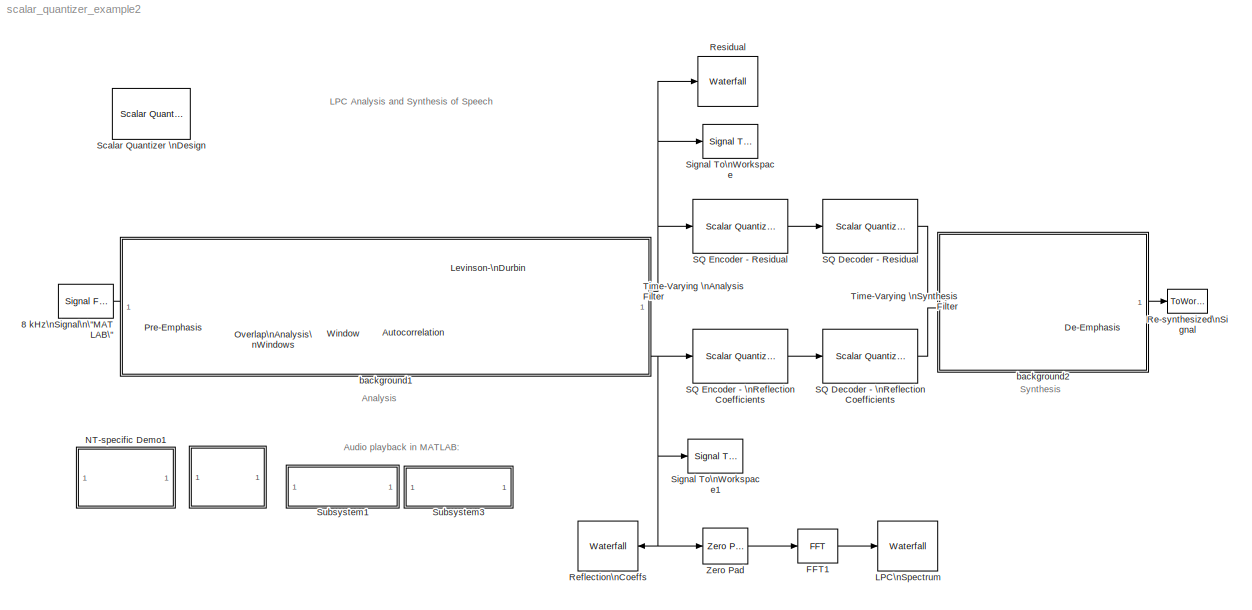
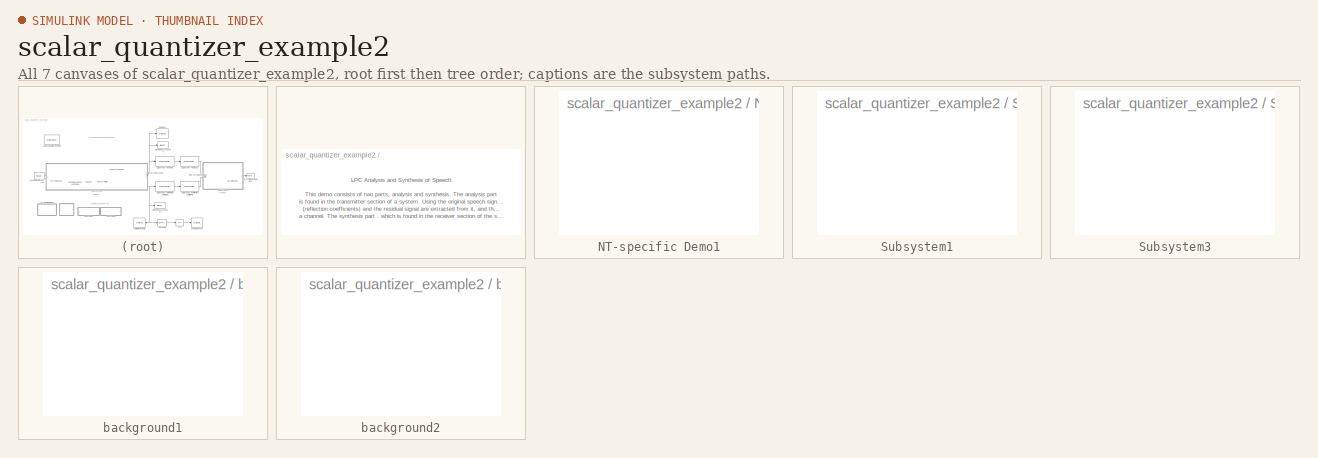
[diagram: thumbnail index - all 7 canvases of the model, root first then tree order]
MODEL scalar_quantizer_example2
KIND model
CONFIG AbsTol = auto
CONFIG FixedStep = auto
CONFIG MaxStep = auto
CONFIG MinStep = auto
CONFIG PreLoadFcn = load mtlb;
CONFIG RelTol = 1e-3
CONFIG Solver = FixedStepDiscrete
CONFIG SolverMode = SingleTasking
CONFIG StartTime = 0.0
CONFIG StopTime = 0.49
BLOCK [SubSystem]  
  MaskDisplay = disp('Info')
  MaskIconFrame = on
  MaskIconOpaque = on
  MaskIconRotate = none
  MaskIconUnits = autoscale
  MaskType = Frame-Based Simulation Info
  Ports = []
  TreatAsAtomicUnit = off
BLOCK [Reference] 8 kHz\nSignal\n\"MATLAB\"  REF=dspsrcs4/Signal From\nWorkspace
  OutputAfterFinalValue = Setting to zero
  Ports = [0, 1]
  SourceBlock = dspsrcs4/Signal From\nWorkspace
  SourceType = Signal From Workspace
  Ts = 1/8000
  X = mtlb*0.32
  nsamps = 80
BLOCK [Reference] Autocorrelation  REF=dspstat3/Autocorrelation
  AllPositiveLags = off
  Ports = [1, 1]
  SourceBlock = dspstat3/Autocorrelation
  SourceType = Autocorrelation
  accumFracLength = 30
  accumMode = Same as output
  accumWordLength = 40
  additionalParams = off
  allowOverrides = on
  bias = Biased
  domain = Time
  maxlag = 12
  outputFracLength = 15
  outputMode = Same as input
  outputWordLength = 16
  overflowMode = off
  prodOutputFracLength = 30
  prodOutputMode = Same as accumulator
  prodOutputWordLength = 32
  roundingMode = Floor
BLOCK [Reference] De-Emphasis  REF=dsparch4/Digital Filter
  AllPoleFiltStruct = Direct form
  BiQuadCoeffs = [1 0.3 0.4 1 0.1 0.2]
  CoeffSource = Specify via dialog
  DenCoeffs = [1 -.95]
  FIRFiltStruct = Direct form
  FiltPerSampPopup = One filter per frame
  IC = 0
  ICden = 0
  ICnum = 0
  IIRFiltStruct = Direct form II transposed
  LatticeCoeffs = [0.2 0.4]
  NumCoeffs = [1 -.95]
  Ports = [1, 1]
  SourceBlock = dsparch4/Digital Filter
  SourceType = Digital Filter
  TypePopup = IIR (all poles)
  accumFracLength = 30
  accumMode = Same as output
  accumWordLength = 40
  additionalParams = off
  allowOverrides = on
  denIgnore = on
  firstCoeffFracLength = 15
  firstCoeffMode = Same as input
  firstCoeffWordLength = 16
  memoryFracLength = 14
  memoryMode = Same as input
  memoryWordLength = 16
  outputFracLength = 15
  outputMode = Same as input
  outputWordLength = 16
  overflowMode = off
  prodOutputFracLength = 30
  prodOutputMode = Same as output
  prodOutputWordLength = 32
  roundingMode = Floor
  secondCoeffFracLength = 15
  secondCoeffMode = Same as numerator
  secondCoeffWordLength = 16
  showAcc = off
  showCoeff = off
  showMem = off
  showMpy = off
  showOut = off
  thirdCoeffFracLength = 15
  thirdCoeffMode = Same as input
  thirdCoeffWordLength = 16
BLOCK [Reference] FFT1  REF=dspxfrm3/FFT
  BitRevOrder = off
  CompMethod = Table lookup
  Ports = [1, 1]
  SkipNorm = off
  SourceBlock = dspxfrm3/FFT
  SourceType = FFT
  TableOpt = Speed
  accumFracLength = 24
  accumMode = Same as output
  accumWordLength = 32
  additionalParams = off
  allowOverrides = on
  firstCoeffFracLength = 15
  firstCoeffMode = Same as input
  firstCoeffWordLength = 16
  outputFracLength = 12
  outputMode = Same as input
  outputWordLength = 16
  overflowMode = off
  prodOutputFracLength = 24
  prodOutputMode = Same as accumulator
  prodOutputWordLength = 32
  roundingMode = Floor
BLOCK [Reference] LPC\nSpectrum  REF=dspsnks4/Waterfall
  AutoExport = off
  AxisColor = [1 1 1]*.9
  AxisGrid = off
  AxisProperties = off
  CMapStr = autumn
  CameraView = [89945.9047576273 49093.2447020758 -7462.52930692949 -16.6995606364064 71 5.5 2.5389885178677 -5.30668596526891 0.808418434368868 0.0592442608385446 5.583225828012 14.2 1]
  DisplayProperties = off
  ExportMode = All visible
  FigPos = [452 44 407 353]
  HistoryFull = Overwrite
  HistoryLength = 100
  InportDimsHint = [129 1]
  MLExportName = ExportData
  MouseMode = Orbit
  NumTraces = 10
  OpenScopeAtSimStart = off
  Ports = [1]
  Snapshot = off
  SourceBlock = dspsnks4/Waterfall
  SourceType = Waterfall
  Suspend = off
  SyncSnapshots = off
  TNewest = 0.35
  TOldest = 0.1
  TraceProperties = off
  TrigRearmFcn = trigrearm
  TrigRearmMode = User-defined
  TrigRearmN = 100
  TrigRearmT = 0
  TrigStartFcn = trigPower
  TrigStartMode = Immediately
  TrigStartN = 1000
  TrigStartT = 10
  TrigStopFcn = trigend
  TrigStopMode = Never
  TrigStopN = 10
  TrigStopT = 0.1
  TriggerProperties = off
  UpdateInterval = 1
  XLabel = Frequency
  XformExpr = 20*log10(abs(u(129:2:end)))
  XformFcn = fliplr
  XformMode = FFT->Mag dB Fs/2
  XformProperties = off
  YLabel = Mag^2
  YMax = 11.2165685036536
  YMin = -44.6156897764664
  ZLabel = History
BLOCK [Reference] Levinson-\nDurbin  REF=dspsolvers/Levinson-Durbin
  Ports = [1, 1]
  SourceBlock = dspsolvers/Levinson-Durbin
  SourceType = Levinson-Durbin
  coeffOutFcn = K
  outP = off
  zeroInpHandling = on
BLOCK [SubSystem] NT-specific Demo1
  MaskDisplay = disp('PC/Windows\\nLPC Demo')
  MaskIconFrame = on
  MaskIconOpaque = on
  MaskIconRotate = none
  MaskIconUnits = autoscale
  MaskType = NT-only Demo
  OpenFcn = dsplpc_win32
  Ports = []
  TreatAsAtomicUnit = off
BLOCK [Reference] Overlap\nAnalysis\nWindows  REF=dspbuff3/Buffer
  N = 160
  Ports = [1, 1]
  SourceBlock = dspbuff3/Buffer
  SourceType = Buffer
  V = 80
  ic = 0
BLOCK [Reference] Pre-Emphasis  REF=dsparch4/Digital Filter
  AllPoleFiltStruct = Direct form
  BiQuadCoeffs = [1 0.3 0.4 1 0.1 0.2]
  CoeffSource = Specify via dialog
  DenCoeffs = [1 0.1]
  FIRFiltStruct = Direct form
  FiltPerSampPopup = One filter per frame
  IC = 0
  ICden = 0
  ICnum = 0
  IIRFiltStruct = Direct form II transposed
  LatticeCoeffs = [0.2 0.4]
  NumCoeffs = [1 -.95]
  Ports = [1, 1]
  SourceBlock = dsparch4/Digital Filter
  SourceType = Digital Filter
  TypePopup = FIR (all zeros)
  accumFracLength = 30
  accumMode = Same as output
  accumWordLength = 40
  additionalParams = off
  allowOverrides = on
  denIgnore = on
  firstCoeffFracLength = 15
  firstCoeffMode = Same as input
  firstCoeffWordLength = 16
  memoryFracLength = 14
  memoryMode = Same as input
  memoryWordLength = 16
  outputFracLength = 15
  outputMode = Same as input
  outputWordLength = 16
  overflowMode = off
  prodOutputFracLength = 30
  prodOutputMode = Same as output
  prodOutputWordLength = 32
  roundingMode = Floor
  secondCoeffFracLength = 15
  secondCoeffMode = Same as numerator
  secondCoeffWordLength = 16
  showAcc = off
  showCoeff = off
  showMem = off
  showMpy = off
  showOut = off
  thirdCoeffFracLength = 15
  thirdCoeffMode = Same as input
  thirdCoeffWordLength = 16
BLOCK [ToWorkspace] Re-synthesized\nSignal
  MaxDataPoints = inf
  SampleTime = -1
  SaveFormat = Array
  VariableName = y_lpc
BLOCK [Reference] Reflection\nCoeffs  REF=dspsnks4/Waterfall
  AutoExport = off
  AxisColor = [1 1 1]*.9
  AxisGrid = on
  AxisProperties = off
  CMapStr = autumn
  CameraView = [73343.0440471642 150383.489958622 -231607.055769344 -0.0735265549347769 7.5 5.5 0.547487828138618 -2.62241953831449 4.03911084299836 0.00240035045613671 1 7.88928028685195 5.25952019123463]
  DisplayProperties = off
  ExportMode = All visible
  FigPos = [35 41 410 358]
  HistoryFull = Overwrite
  HistoryLength = 50
  InportDimsHint = [12 1]
  MLExportName = ExportData2
  MouseMode = Orbit
  NumTraces = 10
  OpenScopeAtSimStart = off
  Ports = [1]
  Snapshot = off
  SourceBlock = dspsnks4/Waterfall
  SourceType = Waterfall
  Suspend = off
  SyncSnapshots = off
  TNewest = 0.7
  TOldest = 0.1
  TraceProperties = off
  TrigRearmFcn = trigrearm
  TrigRearmMode = User-defined
  TrigRearmN = 100
  TrigRearmT = 0
  TrigStartFcn = trigPower
  TrigStartMode = Immediately
  TrigStartN = 1000
  TrigStartT = 10
  TrigStopFcn = trigend
  TrigStopMode = Never
  TrigStopN = 10
  TrigStopT = 0.1
  TriggerProperties = off
  UpdateInterval = 1
  XLabel = Coefficient
  XformExpr = 20*log10(abs(u(129:2:end)))
  XformFcn = fliplr
  XformMode = None
  XformProperties = off
  YLabel = RC Amplitude
  YMax = 0.877130504683106
  YMin = -1.02418361455266
  ZLabel = History
BLOCK [Reference] Residual  REF=dspsnks4/Waterfall
  AutoExport = off
  AxisColor = [1 1 1]*.9
  AxisGrid = on
  AxisProperties = off
  CMapStr = autumn
  CameraView = [62164.2347969079 1792549.89917746 -405278.370332737 -0.097024155318337 44.5 5.5 0.575539043328793 -33.5051317778483 7.57548038023531 0.00104183380472551 1 92.0645761641202 10.3443344004629]
  DisplayProperties = off
  ExportMode = All visible
  FigPos = [524 276 410 358]
  HistoryFull = Overwrite
  HistoryLength = 50
  InportDimsHint = [80 1]
  MLExportName = ExportData2
  MouseMode = Orbit
  NumTraces = 10
  OpenScopeAtSimStart = off
  Ports = [1]
  Snapshot = off
  SourceBlock = dspsnks4/Waterfall
  SourceType = Waterfall
  Suspend = off
  SyncSnapshots = off
  TNewest = 0.7
  TOldest = 0.1
  TraceProperties = off
  TrigRearmFcn = trigrearm
  TrigRearmMode = User-defined
  TrigRearmN = 100
  TrigRearmT = 0
  TrigStartFcn = trigPower
  TrigStartMode = Immediately
  TrigStartN = 1000
  TrigStartT = 10
  TrigStopFcn = trigend
  TrigStopMode = Never
  TrigStopN = 10
  TrigStopT = 0.1
  TriggerProperties = off
  UpdateInterval = 1
  XLabel = Coefficient
  XformExpr = 20*log10(abs(u(129:2:end)))
  XformFcn = fliplr
  XformMode = None
  XformProperties = off
  YLabel = Amplitude
  YMax = 0.386332221847528
  YMin = -0.580380532484202
  ZLabel = History
BLOCK [Reference] SQ Decoder - Residual  REF=dspquant2/Scalar Quantizer\nDecoder
  CBsource = Specify via dialog
  Ports = [1, 1]
  SourceBlock = dspquant2/Scalar Quantizer\nDecoder
  SourceType = Scalar Quantizer Decoder
  Tag = SQDESIGN_GUI_REALIZE_MODEL
  allowOverrides = off
  codebook = [-0.52762    -0.50434    -0.48686    -0.48023    -0.47847      -0.471    -0.46439    -0.45511     -0.4483    -0.44149    -0.41351    -0.40777    -0.38649    -0.38257    -0.34459    -0.33656      -0.332    -0.31506     -0.3058    -0.29467    -0.28964    -0.27695    -0.26405    -0.25569    -0.24792    -0.24257    -0.23586    -0.22862     -0.2106    -0.20577    -0.20412    -0.18901    -0.18326    -0....<+1134ch>
  cwdtype = Double
  invalidin = Clip
  outputFracLength = 15
  outputMode = User-defined
  outputWordLength = 16
BLOCK [Reference] SQ Decoder - \nReflection Coefficients  REF=dspquant2/Scalar Quantizer\nDecoder
  CBsource = Specify via dialog
  Ports = [1, 1]
  SourceBlock = dspquant2/Scalar Quantizer\nDecoder
  SourceType = Scalar Quantizer Decoder
  Tag = SQDESIGN_GUI_REALIZE_MODEL
  allowOverrides = off
  codebook = [-0.93108    -0.91578    -0.90225    -0.85885    -0.84421     -0.8286    -0.81712    -0.78966    -0.76767    -0.74324    -0.72758    -0.71545    -0.62453    -0.59909    -0.58999    -0.56847    -0.56322    -0.54348    -0.51668    -0.50859    -0.49049     -0.4556     -0.4112    -0.40503    -0.39626    -0.37809    -0.36536    -0.36021    -0.35285    -0.34363     -0.3372     -0.3301    -0.32038    -0....<+1134ch>
  cwdtype = Double
  invalidin = Clip
  outputFracLength = 15
  outputMode = User-defined
  outputWordLength = 16
BLOCK [Reference] SQ Encoder - Residual  REF=dspquant2/Scalar Quantizer\nEncoder
  BBoundary = [-inf -0.51598     -0.4956    -0.48355    -0.47935    -0.47473    -0.46769    -0.45975     -0.4517     -0.4449     -0.4275    -0.41064    -0.39713    -0.38453    -0.36358    -0.34057    -0.33428    -0.32353    -0.31043    -0.30024    -0.29216    -0.28329     -0.2705    -0.25987     -0.2518    -0.24524    -0.23922    -0.23224    -0.21961    -0.20819    -0.20495    -0.19656    -0.18613    -0.18151  ...<+1133ch>
  Ports = [1, 1]
  SearchMethod = Binary
  SourceBlock = dspquant2/Scalar Quantizer\nEncoder
  SourceType = Scalar Quantizer Encoder
  Tag = SQDESIGN_GUI_REALIZE_MODEL
  UBoundary = [ -0.51598     -0.4956    -0.48355    -0.47935    -0.47473    -0.46769    -0.45975     -0.4517     -0.4449     -0.4275    -0.41064    -0.39713    -0.38453    -0.36358    -0.34057    -0.33428    -0.32353    -0.31043    -0.30024    -0.29216    -0.28329     -0.2705    -0.25987     -0.2518    -0.24524    -0.23922    -0.23224    -0.21961    -0.20819    -0.20495    -0.19656    -0.18613    -0.18151    -0...<+1125ch>
  additionalParams = off
  allowOverrides = on
  codebook = [-0.52762    -0.50434    -0.48686    -0.48023    -0.47847      -0.471    -0.46439    -0.45511     -0.4483    -0.44149    -0.41351    -0.40777    -0.38649    -0.38257    -0.34459    -0.33656      -0.332    -0.31506     -0.3058    -0.29467    -0.28964    -0.27695    -0.26405    -0.25569    -0.24792    -0.24257    -0.23586    -0.22862     -0.2106    -0.20577    -0.20412    -0.18901    -0.18326    -0....<+1134ch>
  idtype = int32
  invalidin = Clip
  outQError = off
  outQU = off
  outStatus = off
  overflowMode = on
  paramSrc = Specify via dialog
  partType = Bounded
  roundingMode = Nearest
  tieBreakRule = Choose the lower index
BLOCK [Reference] SQ Encoder - \nReflection Coefficients  REF=dspquant2/Scalar Quantizer\nEncoder
  BBoundary = [-inf -0.92343    -0.90902    -0.88055    -0.85153     -0.8364    -0.82286    -0.80339    -0.77867    -0.75545    -0.73541    -0.72151    -0.66999    -0.61181    -0.59454    -0.57923    -0.56585    -0.55335    -0.53008    -0.51263    -0.49954    -0.47304     -0.4334    -0.40811    -0.40064    -0.38717    -0.37172    -0.36279    -0.35653    -0.34824    -0.34041    -0.33365    -0.32524      -0.319  ...<+1133ch>
  Ports = [1, 1]
  SearchMethod = Binary
  SourceBlock = dspquant2/Scalar Quantizer\nEncoder
  SourceType = Scalar Quantizer Encoder
  Tag = SQDESIGN_GUI_REALIZE_MODEL
  UBoundary = [ -0.92343    -0.90902    -0.88055    -0.85153     -0.8364    -0.82286    -0.80339    -0.77867    -0.75545    -0.73541    -0.72151    -0.66999    -0.61181    -0.59454    -0.57923    -0.56585    -0.55335    -0.53008    -0.51263    -0.49954    -0.47304     -0.4334    -0.40811    -0.40064    -0.38717    -0.37172    -0.36279    -0.35653    -0.34824    -0.34041    -0.33365    -0.32524      -0.319    -0...<+1125ch>
  additionalParams = off
  allowOverrides = on
  codebook = [-0.93108    -0.91578    -0.90225    -0.85885    -0.84421     -0.8286    -0.81712    -0.78966    -0.76767    -0.74324    -0.72758    -0.71545    -0.62453    -0.59909    -0.58999    -0.56847    -0.56322    -0.54348    -0.51668    -0.50859    -0.49049     -0.4556     -0.4112    -0.40503    -0.39626    -0.37809    -0.36536    -0.36021    -0.35285    -0.34363     -0.3372     -0.3301    -0.32038    -0....<+1134ch>
  idtype = int32
  invalidin = Clip
  outQError = off
  outQU = off
  outStatus = off
  overflowMode = on
  paramSrc = Specify via dialog
  partType = Bounded
  roundingMode = Nearest
  tieBreakRule = Choose the lower index
BLOCK [Reference] Scalar Quantizer \nDesign  REF=dspquant2/Scalar Quantizer \nDesign
  Ports = []
  SourceBlock = dspquant2/Scalar Quantizer \nDesign
  SourceType = Scalar Quantizer Design
BLOCK [Reference] Signal To\nWorkspace  REF=dspsnks4/Signal To\nWorkspace
  Decimation = 1
  FrameMode = Concatenate frames (2-D array)
  MaxDataPoints = inf
  Ports = [1]
  SourceBlock = dspsnks4/Signal To\nWorkspace
  SourceType = Signal To Workspace
  VariableName = E
BLOCK [Reference] Signal To\nWorkspace1  REF=dspsnks4/Signal To\nWorkspace
  Decimation = 1
  FrameMode = Concatenate frames (2-D array)
  MaxDataPoints = inf
  Ports = [1]
  SourceBlock = dspsnks4/Signal To\nWorkspace
  SourceType = Signal To Workspace
  VariableName = K
BLOCK [SubSystem] Subsystem1
  MaskDisplay = disp('Original\\nSignal')
  MaskIconFrame = on
  MaskIconOpaque = on
  MaskIconRotate = none
  MaskIconUnits = autoscale
  OpenFcn = if exist('mtlb','var'), sound(mtlb*0.32,8000); else errordlg('Data not found in workspace - reload demo model.','DSP Blockset Demo Error'); end
  Ports = []
  TreatAsAtomicUnit = off
BLOCK [SubSystem] Subsystem3
  MaskDisplay = disp('Processed\\nSignal')
  MaskIconFrame = on
  MaskIconOpaque = on
  MaskIconRotate = none
  MaskIconUnits = autoscale
  OpenFcn = if exist('y_lpc','var'), sound(y_lpc,8000); else errordlg('You must run the simulation first.','DSP Blockset Demo Error'); end
  Ports = []
  TreatAsAtomicUnit = off
BLOCK [Reference] Time-Varying \nAnalysis Filter  REF=dsparch4/Digital Filter
  AllPoleFiltStruct = Direct form
  BiQuadCoeffs = [1 0.3 0.4 1 0.1 0.2]
  CoeffSource = Input port(s)
  DenCoeffs = [1 0.1]
  FIRFiltStruct = Lattice MA
  FiltPerSampPopup = One filter per frame
  IC = 0
  ICden = 0
  ICnum = 0
  IIRFiltStruct = Direct form II transposed
  LatticeCoeffs = [0.2 0.4]
  NumCoeffs = [1 -.95]
  Ports = [2, 1]
  SourceBlock = dsparch4/Digital Filter
  SourceType = Digital Filter
  TypePopup = FIR (all zeros)
  accumFracLength = 30
  accumMode = Same as output
  accumWordLength = 40
  additionalParams = off
  allowOverrides = on
  denIgnore = on
  firstCoeffFracLength = 15
  firstCoeffMode = Same as input
  firstCoeffWordLength = 16
  memoryFracLength = 14
  memoryMode = Same as input
  memoryWordLength = 16
  outputFracLength = 15
  outputMode = Same as input
  outputWordLength = 16
  overflowMode = off
  prodOutputFracLength = 30
  prodOutputMode = Same as output
  prodOutputWordLength = 32
  roundingMode = Floor
  secondCoeffFracLength = 15
  secondCoeffMode = Same as numerator
  secondCoeffWordLength = 16
  showAcc = off
  showCoeff = off
  showMem = off
  showMpy = off
  showOut = off
  thirdCoeffFracLength = 15
  thirdCoeffMode = Same as input
  thirdCoeffWordLength = 16
BLOCK [Reference] Time-Varying \nSynthesis Filter  REF=dsparch4/Digital Filter
  AllPoleFiltStruct = Lattice AR
  BiQuadCoeffs = [1 0.3 0.4 1 0.1 0.2]
  CoeffSource = Input port(s)
  DenCoeffs = [1 0.1]
  FIRFiltStruct = Direct form
  FiltPerSampPopup = One filter per frame
  IC = 0
  ICden = 0
  ICnum = 0
  IIRFiltStruct = Direct form II transposed
  LatticeCoeffs = [0.2 0.4]
  NumCoeffs = [1 -.95]
  Ports = [2, 1]
  SourceBlock = dsparch4/Digital Filter
  SourceType = Digital Filter
  TypePopup = IIR (all poles)
  accumFracLength = 30
  accumMode = Same as output
  accumWordLength = 40
  additionalParams = off
  allowOverrides = on
  denIgnore = on
  firstCoeffFracLength = 15
  firstCoeffMode = Same as input
  firstCoeffWordLength = 16
  memoryFracLength = 14
  memoryMode = Same as input
  memoryWordLength = 16
  outputFracLength = 15
  outputMode = Same as input
  outputWordLength = 16
  overflowMode = off
  prodOutputFracLength = 30
  prodOutputMode = Same as output
  prodOutputWordLength = 32
  roundingMode = Floor
  secondCoeffFracLength = 15
  secondCoeffMode = Same as numerator
  secondCoeffWordLength = 16
  showAcc = off
  showCoeff = off
  showMem = off
  showMpy = off
  showOut = off
  thirdCoeffFracLength = 15
  thirdCoeffMode = Same as input
  thirdCoeffWordLength = 16
BLOCK [Reference] Window  REF=dspsigops/Window\nFunction
  N = 64
  OptParams = off
  Ports = [1, 1]
  Rs = 50
  SourceBlock = dspsigops/Window\nFunction
  SourceType = Window Function
  UserParams = {1.0}
  UserWindow = hamming
  additionalParams = off
  allowOverrides = on
  beta = 10
  dataType = double
  firstCoeffFracLength = 15
  firstCoeffMode = Same as input
  firstCoeffWordLength = 16
  fracBitsMode = Best precision
  numFracBits = 15
  outputFracLength = 15
  outputMode = Same as input
  outputWordLength = 16
  overflowMode = off
  prodOutputFracLength = 15
  prodOutputMode = Same as output
  prodOutputWordLength = 16
  roundingMode = Floor
  sampmode = Continuous
  samptime = 1
  udDataType = sfix(16)
  winmode = Apply window to input
  winsamp = Symmetric
  wintype = Hamming
  wordLen = 16
BLOCK [Reference] Zero Pad  REF=dspsigops/Zero Pad
  Ports = [1, 1]
  SourceBlock = dspsigops/Zero Pad
  SourceType = Zero Pad
  numOutCols = 1
  numOutRows = 256
  padNumOutColsSpecMethod = User-specified
  padNumOutRowsSpecMethod = User-specified
  padSigAt = End
  trunc_flag = None
  zpadAlong = Columns
BLOCK [SubSystem] background1
  MaskDisplay = disp('')
  MaskIconFrame = on
  MaskIconOpaque = on
  MaskIconRotate = none
  MaskIconUnits = autoscale
  Ports = []
  TreatAsAtomicUnit = off
BLOCK [SubSystem] background2
  MaskDisplay = disp('')
  MaskIconFrame = on
  MaskIconOpaque = on
  MaskIconRotate = none
  MaskIconUnits = autoscale
  Ports = []
  TreatAsAtomicUnit = off
ANNOTATION (root): Audio playback in MATLAB:
ANNOTATION (root): Analysis
ANNOTATION (root): Synthesis
ANNOTATION (root): \nLPC Analysis and Synthesis of Speech\n
ANNOTATION  : LPC Analysis and Synthesis of Speech\n\nThis demo consists of two parts, analysis and synthesis. The analysis part\nis found in the transmitter section of a system. Using the original speech signal, parameters \n(reflection coefficients) and the residual signal are extracted from it, and then transmitted over\na channel. The synthesis part , which is found in the receiver section of the system, re...<+962ch>
LINE 8 kHz\nSignal\n\"MATLAB\":1 -> Pre-Emphasis:1
LINE Autocorrelation:1 -> Levinson-\nDurbin:1
LINE De-Emphasis:1 -> Re-synthesized\nSignal:1
LINE FFT1:1 -> LPC\nSpectrum:1
NET Levinson-\nDurbin:1 -> Reflection\nCoeffs:1, SQ Encoder - \nReflection Coefficients:1, Signal To\nWorkspace1:1, Time-Varying \nAnalysis Filter:2, Zero Pad:1
LINE Overlap\nAnalysis\nWindows:1 -> Window:1
NET Pre-Emphasis:1 -> Overlap\nAnalysis\nWindows:1, Time-Varying \nAnalysis Filter:1
LINE SQ Decoder - Residual:1 -> Time-Varying \nSynthesis Filter:1
LINE SQ Decoder - \nReflection Coefficients:1 -> Time-Varying \nSynthesis Filter:2
LINE SQ Encoder - Residual:1 -> SQ Decoder - Residual:1
LINE SQ Encoder - \nReflection Coefficients:1 -> SQ Decoder - \nReflection Coefficients:1
NET Time-Varying \nAnalysis Filter:1 -> Residual:1, SQ Encoder - Residual:1, Signal To\nWorkspace:1
LINE Time-Varying \nSynthesis Filter:1 -> De-Emphasis:1
LINE Window:1 -> Autocorrelation:1
LINE Zero Pad:1 -> FFT1:1
note: NET lines group one-source signal fan-out (src -> all destinations, sorted); 1:1 wires keep LINE
